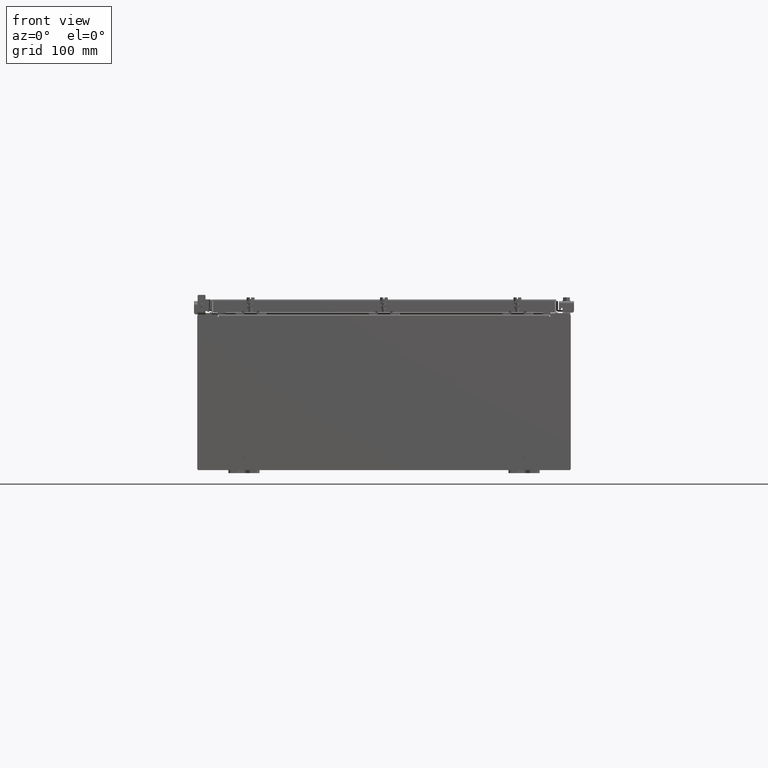
[diagram: clean part render]
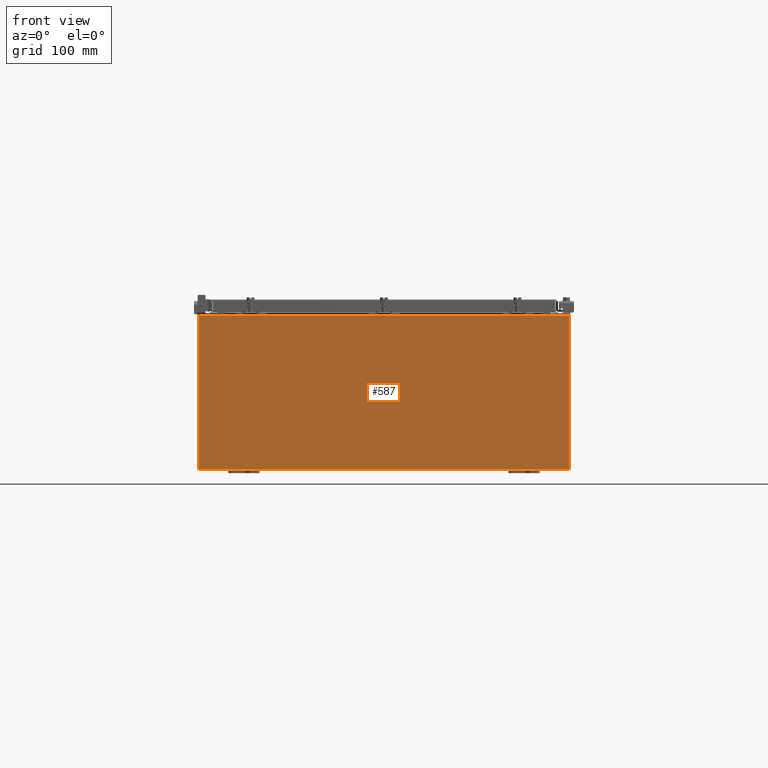
[diagram: same view with one face highlighted and labeled with its STEP entity id]
A machine part, front view. The second image highlights one B-rep face of the part: STEP entity #587.
In plain terms, the highlighted planar face has unit normal (-0, 1, -0).
Its self-contained STEP definition (entity closure, byte-faithful):
#264 = ORIENTED_EDGE ( 'NONE', *, *, #19996, .T. ) ;
#316 = VERTEX_POINT ( 'NONE', #22607 ) ;
#434 = DIRECTION ( 'NONE',  ( -0.0000000000000000000, -0.0000000000000000000, 1.000000000000000000 ) ) ;
#506 = LINE ( 'NONE', #12848, #23364 ) ;
#587 = ADVANCED_FACE ( 'NONE', ( #10825 ), #12450, .F. ) ;
#644 = VERTEX_POINT ( 'NONE', #6503 ) ;
#712 = CARTESIAN_POINT ( 'NONE',  ( -11.92530000000000000, 0.0000000000000000000, 4.925300000000000000 ) ) ;
#1060 = LINE ( 'NONE', #712, #10100 ) ;
#1375 = CARTESIAN_POINT ( 'NONE',  ( -10.67455000000000200, -0.0000000000000000000, 0.0000000000000000000 ) ) ;
#1423 = EDGE_CURVE ( 'NONE', #316, #17547, #8031, .T. ) ;
#1476 = AXIS2_PLACEMENT_3D ( 'NONE', #18674, #7833, #20461 ) ;
#1524 = ORIENTED_EDGE ( 'NONE', *, *, #9547, .T. ) ;
#1653 = ORIENTED_EDGE ( 'NONE', *, *, #16835, .F. ) ;
#2465 = CARTESIAN_POINT ( 'NONE',  ( -10.65587500000000200, 0.0000000000000000000, 4.874950000000000100 ) ) ;
#2547 = CARTESIAN_POINT ( 'NONE',  ( 11.92530000000000000, 0.0000000000000000000, -4.925300000000000000 ) ) ;
#2612 = DIRECTION ( 'NONE',  ( 0.0000000000000000000, 0.0000000000000000000, -1.000000000000000000 ) ) ;
#2719 = CARTESIAN_POINT ( 'NONE',  ( -11.92530000000000000, 0.0000000000000000000, -4.925300000000000000 ) ) ;
#2736 = ORIENTED_EDGE ( 'NONE', *, *, #1423, .T. ) ;
#2873 = CARTESIAN_POINT ( 'NONE',  ( -10.63720000000000400, -0.0000000000000000000, 4.874950000000000100 ) ) ;
#2933 = ORIENTED_EDGE ( 'NONE', *, *, #10425, .F. ) ;
#3267 = VECTOR ( 'NONE', #16905, 39.37007874015748100 ) ;
#4026 = DIRECTION ( 'NONE',  ( -1.000000000000000000, -0.0000000000000000000, -0.0000000000000000000 ) ) ;
#4280 = DIRECTION ( 'NONE',  ( 0.0000000000000000000, 0.0000000000000000000, -1.000000000000000000 ) ) ;
#4303 = ORIENTED_EDGE ( 'NONE', *, *, #8122, .F. ) ;
#4435 = CARTESIAN_POINT ( 'NONE',  ( 11.92530000000000000, 0.0000000000000000000, 4.925300000000000000 ) ) ;
#4835 = EDGE_LOOP ( 'NONE', ( #6505, #9061, #17937, #264, #4303, #2933, #1653, #1524, #2736, #8720, #6609, #11633 ) ) ;
#5071 = DIRECTION ( 'NONE',  ( 0.0000000000000000000, 0.0000000000000000000, -1.000000000000000000 ) ) ;
#5283 = VERTEX_POINT ( 'NONE', #11939 ) ;
#6503 = CARTESIAN_POINT ( 'NONE',  ( -10.67455000000000200, 0.0000000000000000000, 4.874950000000000100 ) ) ;
#6505 = ORIENTED_EDGE ( 'NONE', *, *, #12158, .F. ) ;
#6609 = ORIENTED_EDGE ( 'NONE', *, *, #15650, .T. ) ;
#7833 = DIRECTION ( 'NONE',  ( -0.0000000000000000000, 1.000000000000000000, -0.0000000000000000000 ) ) ;
#8022 = CARTESIAN_POINT ( 'NONE',  ( 0.0000000000000000000, 0.0000000000000000000, 0.0000000000000000000 ) ) ;
#8031 = LINE ( 'NONE', #4435, #12289 ) ;
#8111 = LINE ( 'NONE', #22031, #11790 ) ;
#8122 = EDGE_CURVE ( 'NONE', #19550, #5283, #506, .T. ) ;
#8547 = CARTESIAN_POINT ( 'NONE',  ( -10.67455000000000200, 0.0000000000000000000, 4.925300000000000000 ) ) ;
#8561 = DIRECTION ( 'NONE',  ( 0.0000000000000000000, -1.000000000000000000, 0.0000000000000000000 ) ) ;
#8630 = CARTESIAN_POINT ( 'NONE',  ( -10.63720000000000400, -0.0000000000000000000, 0.0000000000000000000 ) ) ;
#8634 = DIRECTION ( 'NONE',  ( 0.0000000000000000000, -0.0000000000000000000, -1.000000000000000000 ) ) ;
#8707 = VECTOR ( 'NONE', #434, 39.37007874015748100 ) ;
#8720 = ORIENTED_EDGE ( 'NONE', *, *, #10360, .T. ) ;
#9061 = ORIENTED_EDGE ( 'NONE', *, *, #14631, .F. ) ;
#9102 = VERTEX_POINT ( 'NONE', #8547 ) ;
#9385 = DIRECTION ( 'NONE',  ( 1.000000000000000000, 0.0000000000000000000, 0.0000000000000000000 ) ) ;
#9536 = VERTEX_POINT ( 'NONE', #11449 ) ;
#9547 = EDGE_CURVE ( 'NONE', #16077, #316, #1060, .T. ) ;
#9754 = DIRECTION ( 'NONE',  ( 1.000000000000000000, 0.0000000000000000000, 0.0000000000000000000 ) ) ;
#10100 = VECTOR ( 'NONE', #15105, 39.37007874015748100 ) ;
#10203 = AXIS2_PLACEMENT_3D ( 'NONE', #8022, #8561, #8634 ) ;
#10360 = EDGE_CURVE ( 'NONE', #17547, #11257, #17714, .T. ) ;
#10425 = EDGE_CURVE ( 'NONE', #22179, #19550, #21347, .T. ) ;
#10825 = FACE_OUTER_BOUND ( 'NONE', #4835, .T. ) ;
#11225 = CARTESIAN_POINT ( 'NONE',  ( -11.92530000000000000, 0.0000000000000000000, -4.925300000000000000 ) ) ;
#11257 = VERTEX_POINT ( 'NONE', #2719 ) ;
#11449 = CARTESIAN_POINT ( 'NONE',  ( -10.63720000000000400, -7.171100983368691200E-016, 4.912300000000000100 ) ) ;
#11483 = CARTESIAN_POINT ( 'NONE',  ( 10.63720000000000400, 0.0000000000000000000, 4.874950000000000100 ) ) ;
#11633 = ORIENTED_EDGE ( 'NONE', *, *, #21209, .T. ) ;
#11790 = VECTOR ( 'NONE', #9385, 39.37007874015748100 ) ;
#11939 = CARTESIAN_POINT ( 'NONE',  ( 10.63720000000000400, 0.0000000000000000000, 4.912300000000000100 ) ) ;
#12158 = EDGE_CURVE ( 'NONE', #644, #9102, #12285, .T. ) ;
#12285 = LINE ( 'NONE', #1375, #15949 ) ;
#12289 = VECTOR ( 'NONE', #2612, 39.37007874015748100 ) ;
#12450 = PLANE ( 'NONE',  #10203 ) ;
#12799 = VECTOR ( 'NONE', #9754, 39.37007874015748100 ) ;
#12848 = CARTESIAN_POINT ( 'NONE',  ( 10.63720000000000400, 0.0000000000000000000, 0.0000000000000000000 ) ) ;
#12912 = VECTOR ( 'NONE', #4026, 39.37007874015748100 ) ;
#12919 = DIRECTION ( 'NONE',  ( 0.0000000000000000000, 0.0000000000000000000, 1.000000000000000000 ) ) ;
#14631 = EDGE_CURVE ( 'NONE', #21475, #644, #16114, .T. ) ;
#15105 = DIRECTION ( 'NONE',  ( 1.000000000000000000, 0.0000000000000000000, 0.0000000000000000000 ) ) ;
#15137 = DIRECTION ( 'NONE',  ( -0.0000000000000000000, 1.000000000000000000, -0.0000000000000000000 ) ) ;
#15650 = EDGE_CURVE ( 'NONE', #11257, #18912, #21986, .T. ) ;
#15949 = VECTOR ( 'NONE', #23015, 39.37007874015748100 ) ;
#16048 = EDGE_CURVE ( 'NONE', #9536, #21475, #19994, .T. ) ;
#16077 = VERTEX_POINT ( 'NONE', #17807 ) ;
#16114 = CIRCLE ( 'NONE', #21547, 0.01867499999999949400 ) ;
#16835 = EDGE_CURVE ( 'NONE', #16077, #22179, #21355, .T. ) ;
#16905 = DIRECTION ( 'NONE',  ( -4.340572780400004900E-014, 0.0000000000000000000, -1.000000000000000000 ) ) ;
#17547 = VERTEX_POINT ( 'NONE', #2547 ) ;
#17588 = LINE ( 'NONE', #20566, #12799 ) ;
#17714 = LINE ( 'NONE', #11225, #12912 ) ;
#17807 = CARTESIAN_POINT ( 'NONE',  ( 10.67455000000000200, 0.0000000000000000000, 4.925300000000000000 ) ) ;
#17937 = ORIENTED_EDGE ( 'NONE', *, *, #16048, .F. ) ;
#17972 = CARTESIAN_POINT ( 'NONE',  ( 10.67455000000000200, 0.0000000000000000000, 4.874950000000000100 ) ) ;
#18674 = CARTESIAN_POINT ( 'NONE',  ( 10.65587500000000200, 0.0000000000000000000, 4.874950000000000100 ) ) ;
#18877 = CARTESIAN_POINT ( 'NONE',  ( -11.92530000000000000, 0.0000000000000000000, 4.925300000000000000 ) ) ;
#18912 = VERTEX_POINT ( 'NONE', #18877 ) ;
#19550 = VERTEX_POINT ( 'NONE', #11483 ) ;
#19994 = LINE ( 'NONE', #8630, #20552 ) ;
#19996 = EDGE_CURVE ( 'NONE', #9536, #5283, #17588, .T. ) ;
#20461 = DIRECTION ( 'NONE',  ( 0.0000000000000000000, 0.0000000000000000000, -1.000000000000000000 ) ) ;
#20552 = VECTOR ( 'NONE', #5071, 39.37007874015748100 ) ;
#20566 = CARTESIAN_POINT ( 'NONE',  ( -10.63720000000000400, -7.171100983368691200E-016, 4.912300000000000100 ) ) ;
#21209 = EDGE_CURVE ( 'NONE', #18912, #9102, #8111, .T. ) ;
#21347 = CIRCLE ( 'NONE', #1476, 0.01867499999999949400 ) ;
#21355 = LINE ( 'NONE', #22264, #3267 ) ;
#21475 = VERTEX_POINT ( 'NONE', #2873 ) ;
#21547 = AXIS2_PLACEMENT_3D ( 'NONE', #2465, #15137, #4280 ) ;
#21986 = LINE ( 'NONE', #22149, #8707 ) ;
#22031 = CARTESIAN_POINT ( 'NONE',  ( -11.92530000000000000, 0.0000000000000000000, 4.925300000000000000 ) ) ;
#22149 = CARTESIAN_POINT ( 'NONE',  ( -11.92530000000000000, 0.0000000000000000000, 4.925300000000000000 ) ) ;
#22179 = VERTEX_POINT ( 'NONE', #17972 ) ;
#22264 = CARTESIAN_POINT ( 'NONE',  ( 10.67454999999979000, -0.0000000000000000000, -4.633366117301795800E-013 ) ) ;
#22607 = CARTESIAN_POINT ( 'NONE',  ( 11.92530000000000000, 0.0000000000000000000, 4.925300000000000000 ) ) ;
#23015 = DIRECTION ( 'NONE',  ( 0.0000000000000000000, 0.0000000000000000000, 1.000000000000000000 ) ) ;
#23364 = VECTOR ( 'NONE', #12919, 39.37007874015748100 ) ;